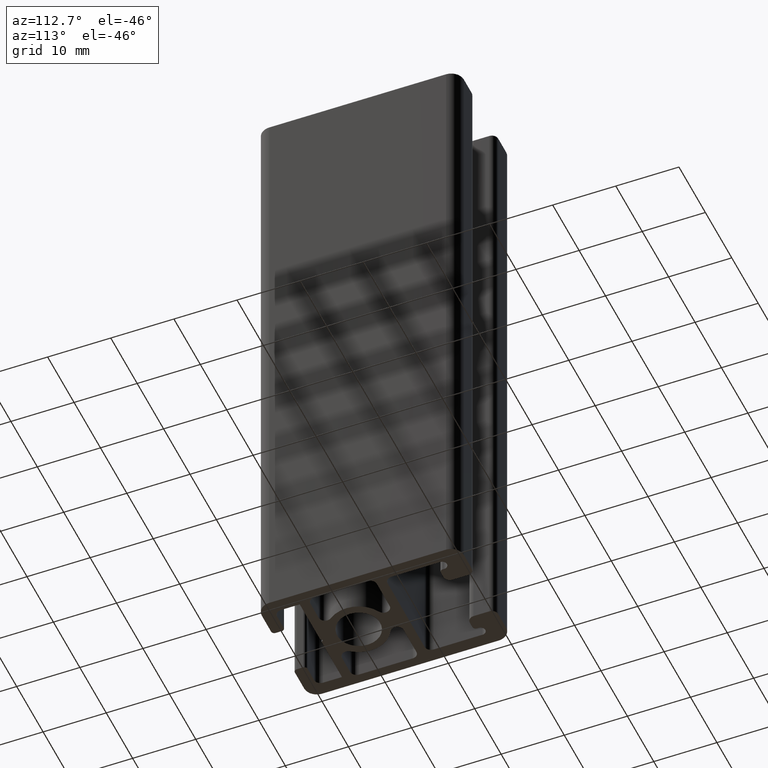
[diagram: clean part render]
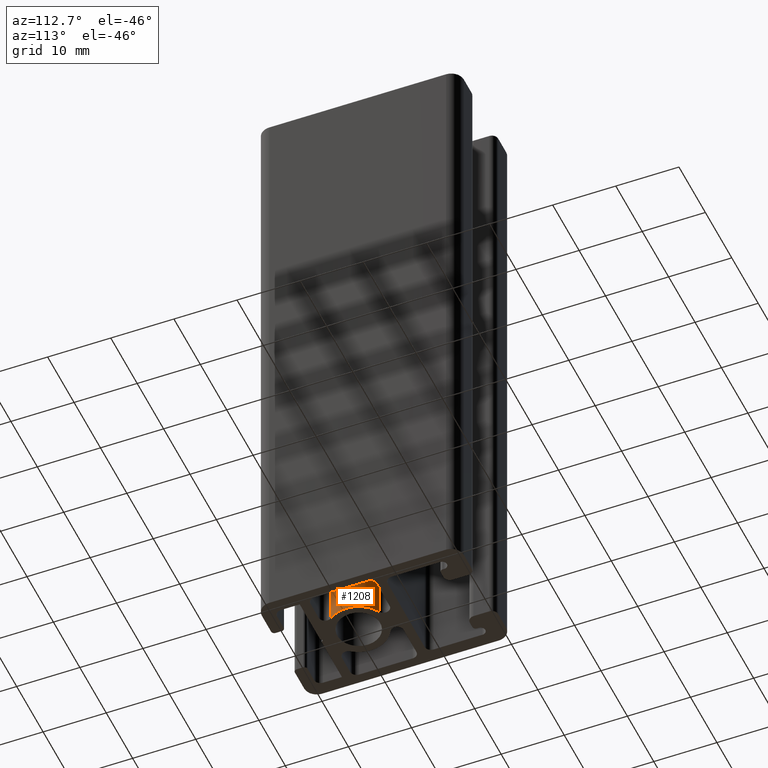
[diagram: same view with one face highlighted and labeled with its STEP entity id]
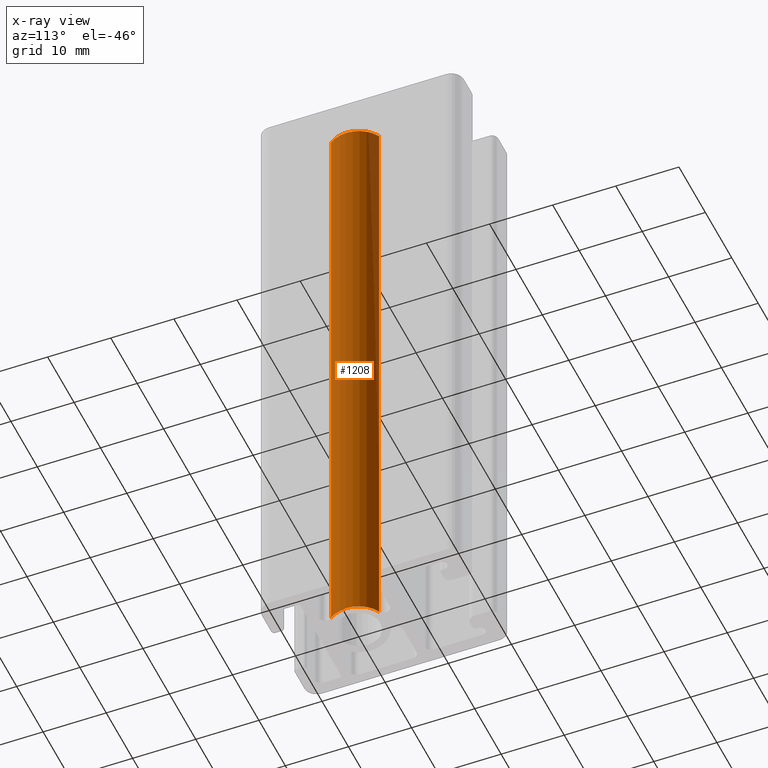
[diagram: x-ray of the same camera — body ghosted, the highlighted face saturated]
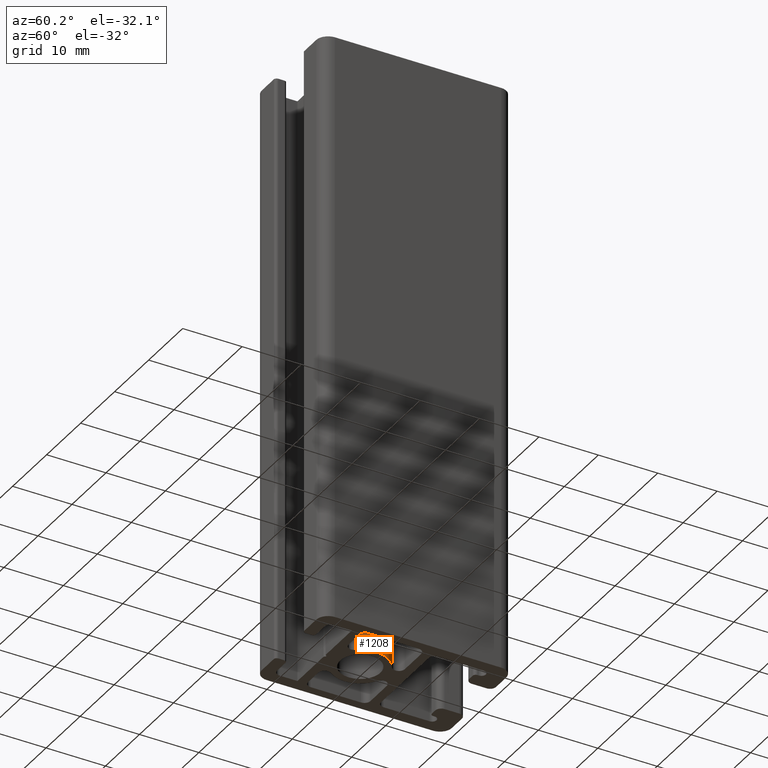
[diagram: same view with one face highlighted and labeled with its STEP entity id]
A machine part, auxiliary view. The second image highlights one B-rep face of the part: STEP entity #1208.
The next image is the same camera in x-ray: the body ghosted, the highlighted face saturated — about 7% of this face is hidden behind the body in this view.
A second angle (auxiliary view) of the same face is appended — the face is thin or edge-on in the first view.
In plain terms, the highlighted cylindrical surface (edge-blend (fillet) strip) has radius 4.65 mm, axis along (0, 0, 1).
Its self-contained STEP definition (entity closure, byte-faithful):
#55=FACE_OUTER_BOUND('',#119,.T.);
#119=EDGE_LOOP('',(#807,#808,#809,#810));
#190=LINE('',#1783,#313);
#191=LINE('',#1786,#314);
#313=VECTOR('',#1406,100.);
#314=VECTOR('',#1409,100.);
#436=CIRCLE('',#1275,4.65);
#437=CIRCLE('',#1276,4.65);
#498=VERTEX_POINT('',#1779);
#499=VERTEX_POINT('',#1780);
#500=VERTEX_POINT('',#1782);
#501=VERTEX_POINT('',#1784);
#622=EDGE_CURVE('',#498,#499,#436,.T.);
#623=EDGE_CURVE('',#500,#498,#190,.T.);
#624=EDGE_CURVE('',#501,#500,#437,.T.);
#625=EDGE_CURVE('',#501,#499,#191,.T.);
#807=ORIENTED_EDGE('',*,*,#622,.F.);
#808=ORIENTED_EDGE('',*,*,#623,.F.);
#809=ORIENTED_EDGE('',*,*,#624,.F.);
#810=ORIENTED_EDGE('',*,*,#625,.T.);
#1177=CYLINDRICAL_SURFACE('',#1274,4.65);
#1208=ADVANCED_FACE('',(#55),#1177,.T.);
#1274=AXIS2_PLACEMENT_3D('',#1778,#1402,#1403);
#1275=AXIS2_PLACEMENT_3D('',#1781,#1404,#1405);
#1276=AXIS2_PLACEMENT_3D('',#1785,#1407,#1408);
#1402=DIRECTION('center_axis',(0.,0.,1.));
#1403=DIRECTION('ref_axis',(0.785021098535208,-0.619469026549815,0.));
#1404=DIRECTION('center_axis',(0.,0.,1.));
#1405=DIRECTION('ref_axis',(0.785021098535208,-0.619469026549815,0.));
#1406=DIRECTION('',(0.,0.,1.));
#1407=DIRECTION('center_axis',(0.,0.,-1.));
#1408=DIRECTION('ref_axis',(0.785021098535208,-0.619469026549815,0.));
#1409=DIRECTION('',(0.,0.,1.));
#1778=CARTESIAN_POINT('Origin',(0.,0.,0.));
#1779=CARTESIAN_POINT('',(3.65034810818872,-2.88053097345664,100.));
#1780=CARTESIAN_POINT('',(2.16538930418971,4.1150442477938,100.));
#1781=CARTESIAN_POINT('Origin',(0.,0.,100.));
#1782=CARTESIAN_POINT('',(3.65034810818872,-2.88053097345664,0.));
#1783=CARTESIAN_POINT('',(3.65034810818872,-2.88053097345664,0.));
#1784=CARTESIAN_POINT('',(2.16538930418971,4.1150442477938,0.));
#1785=CARTESIAN_POINT('Origin',(0.,0.,0.));
#1786=CARTESIAN_POINT('',(2.16538930418971,4.1150442477938,0.));